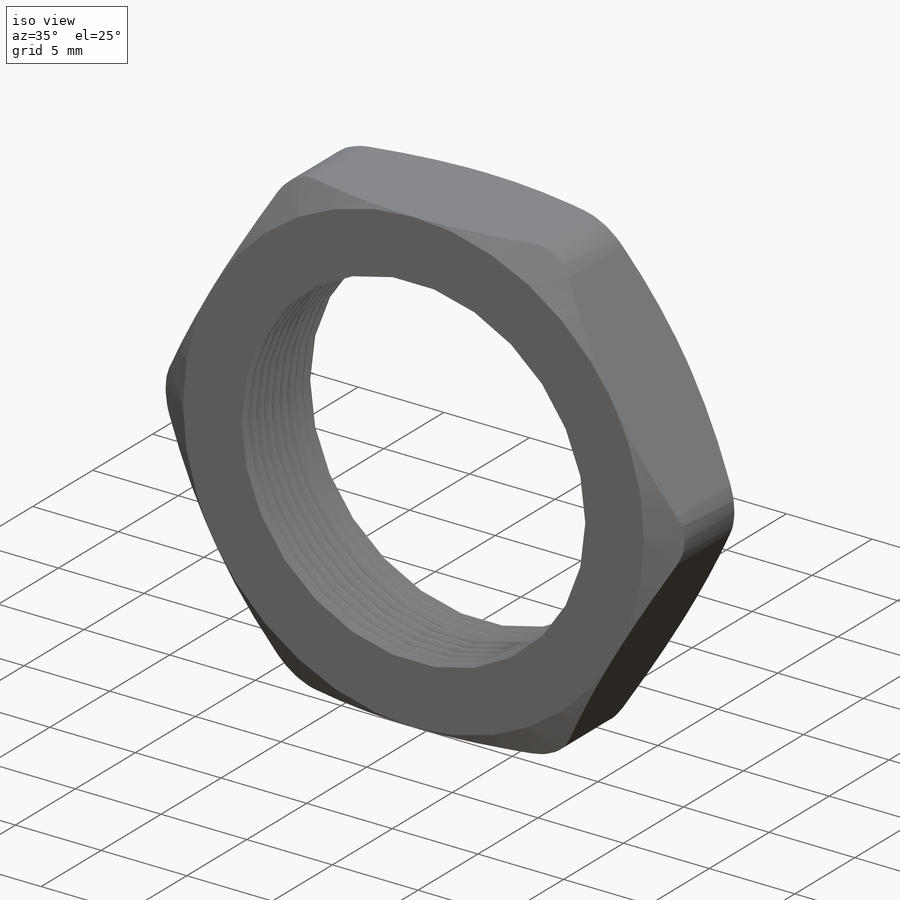
[diagram: iso view]
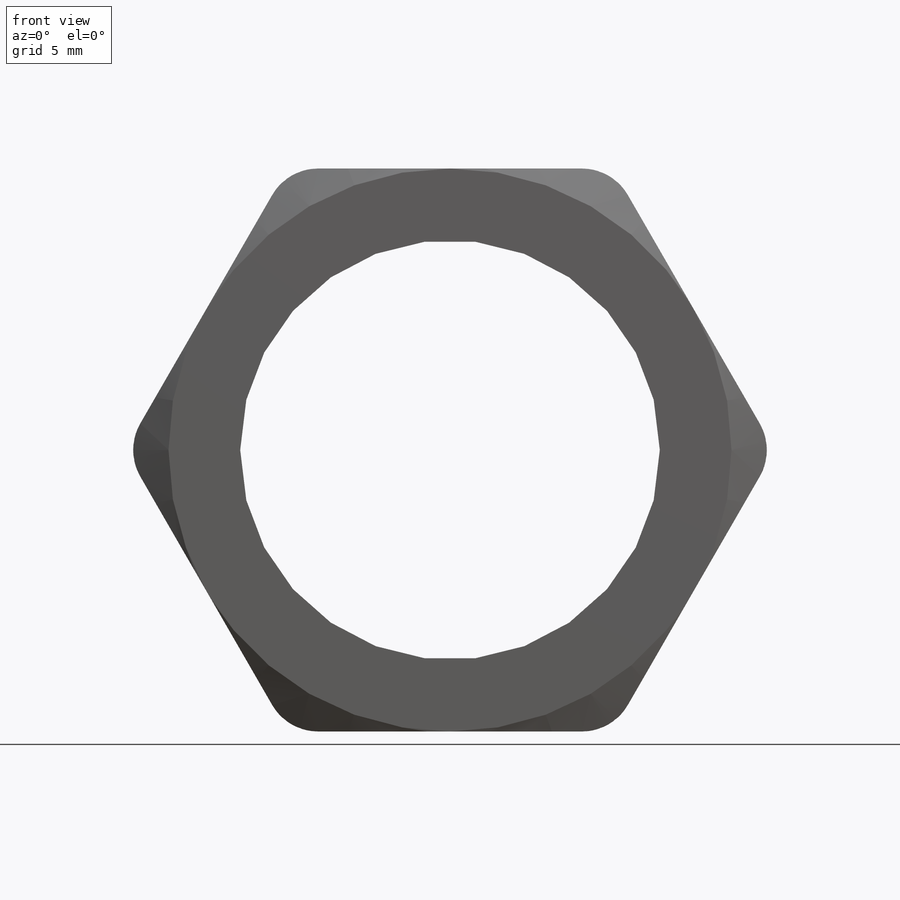
[diagram: front view]
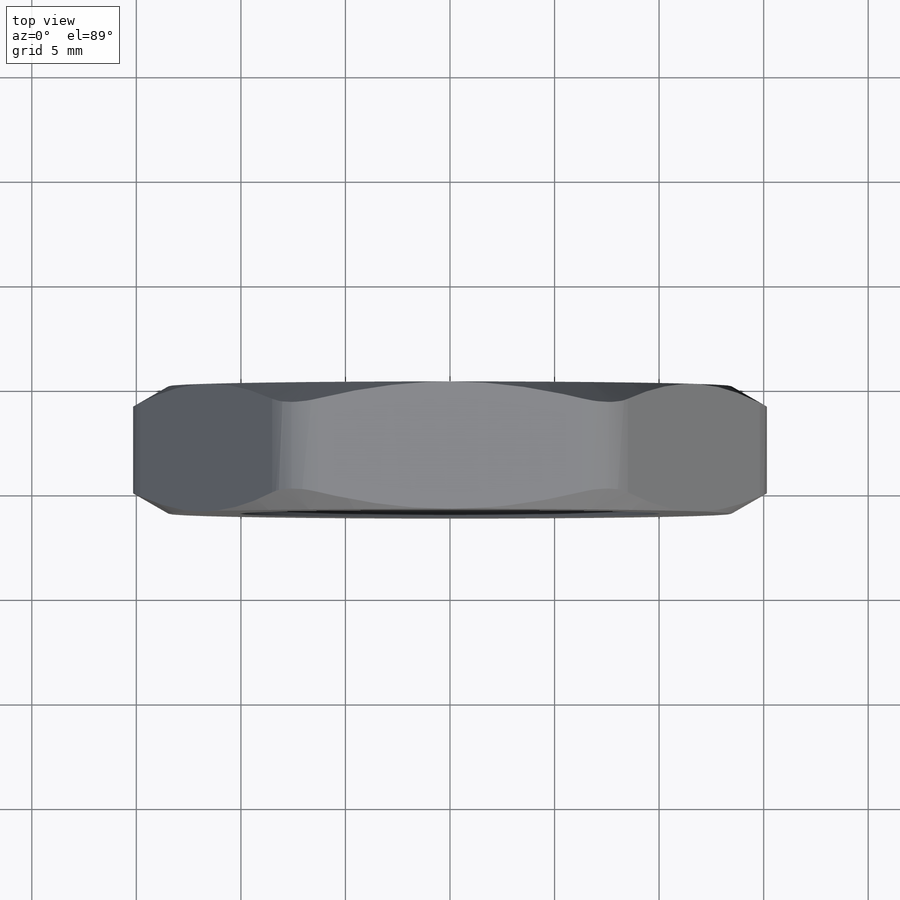
[diagram: top view]
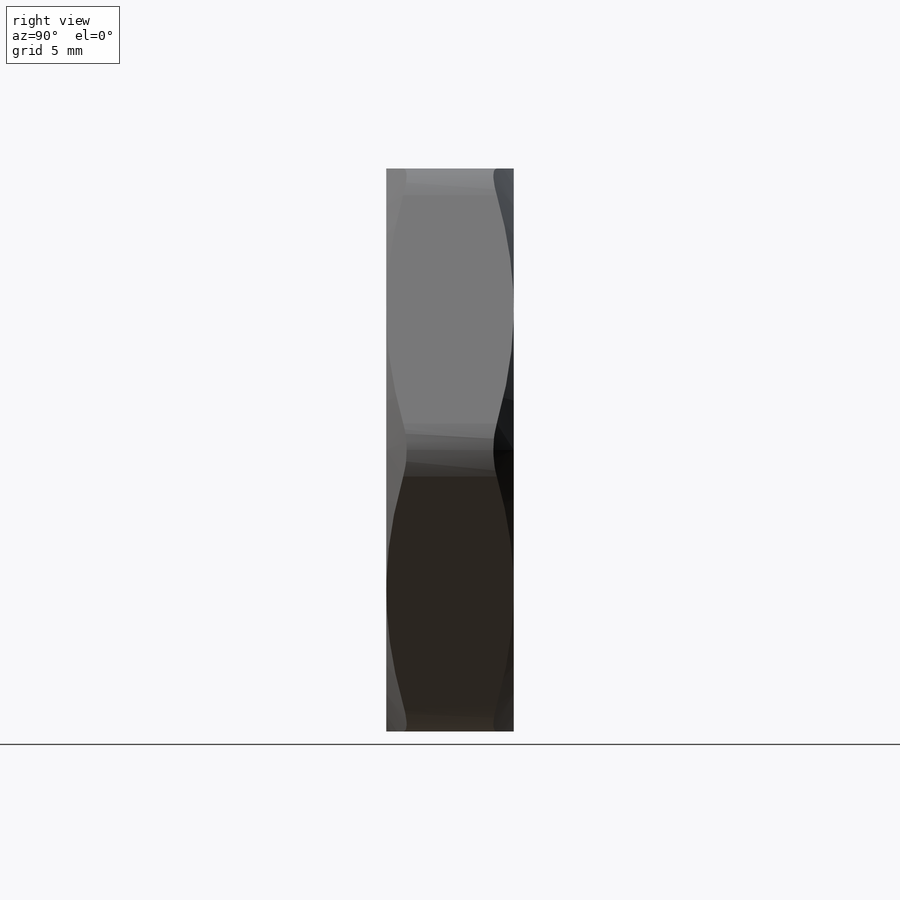
[diagram: right view]
SOLIDWORKS PART (.sldprt)
format: sldprt  version: not decoded by parser v0  size: 219,648 bytes
history: native  units: mm
features: sketch x4, cut_extrude x2, material x1, extrude x1, fillet x1, cut_revolve x1, pattern_linear x1 (+13 scaffold rows collapsed)
feature tree (24):
  scaffold x13  (default folders/planes/origin — collapsed)
  material  "Material <not specified>"
  sketch  "Sketch1"  dims[TS=20.066mm H=26.924mm D2=~1.113538mm]
  extrude  "Extrude1"  Depth=6.096mm G=6.096mm
  sketch  "Sketch2"
  cut_extrude  "Cut-Extrude1"  [1 undecoded]
  sketch  "Sketch3"
  cut_extrude  "Cut-Extrude2"  [1 undecoded]
  fillet  "Fillet1"  Radius=2.54mm
  sketch  "Sketch4"  dims[c1.D1=~0.431979mm c2.D1=60.0deg c2.D2=~0.244903mm c3.D2=60.0deg c3.D3=0.508mm]
  cut_revolve  "Cut-Revolve1"  Angle=360deg
  pattern_linear  "LPattern1"  Count1=10 Count2=1 Spacing1=0.635mm Spacing2=50mm
decode coverage: 6 of 10 modeling features carry decoded parameters
note: ~ marks probable driven/reference dimensions
note: 2 parameter values undecoded
note: suppression state not decoded; provenance and decode notes live in map.json
